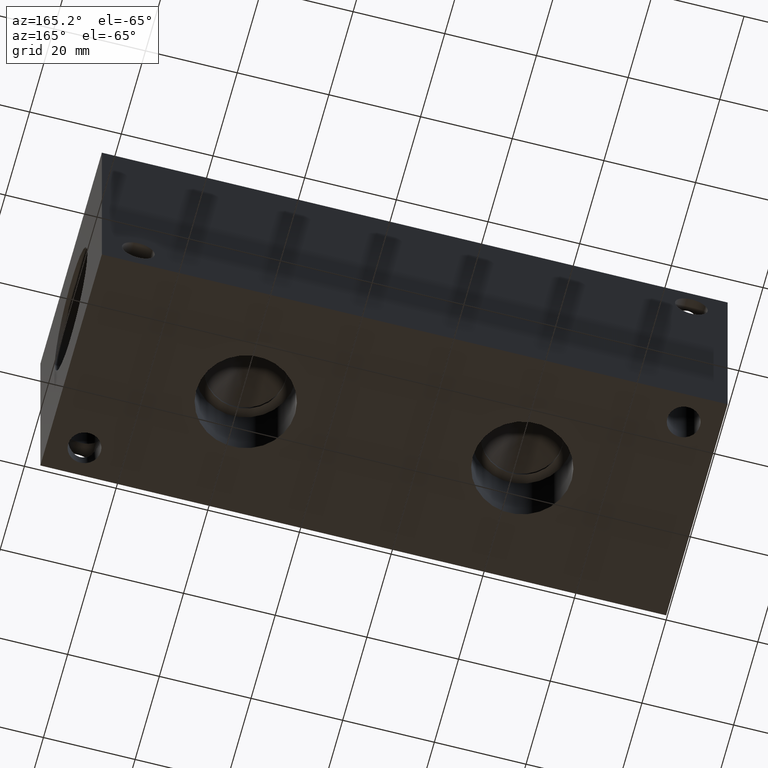
[diagram: clean part render]
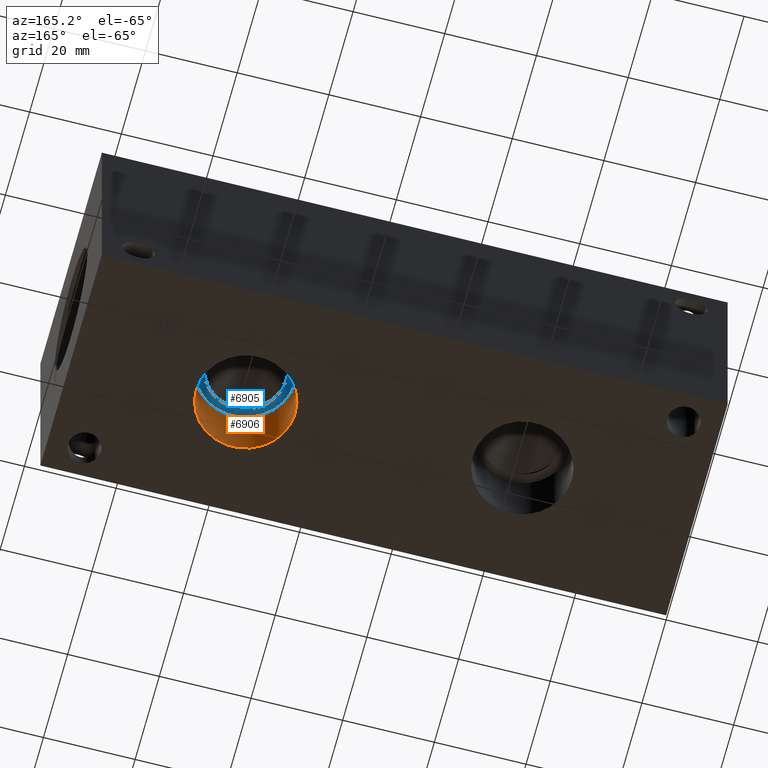
[diagram: same view with the hole feature highlighted: cylindrical wall and planar end face, labeled with their STEP entity ids]
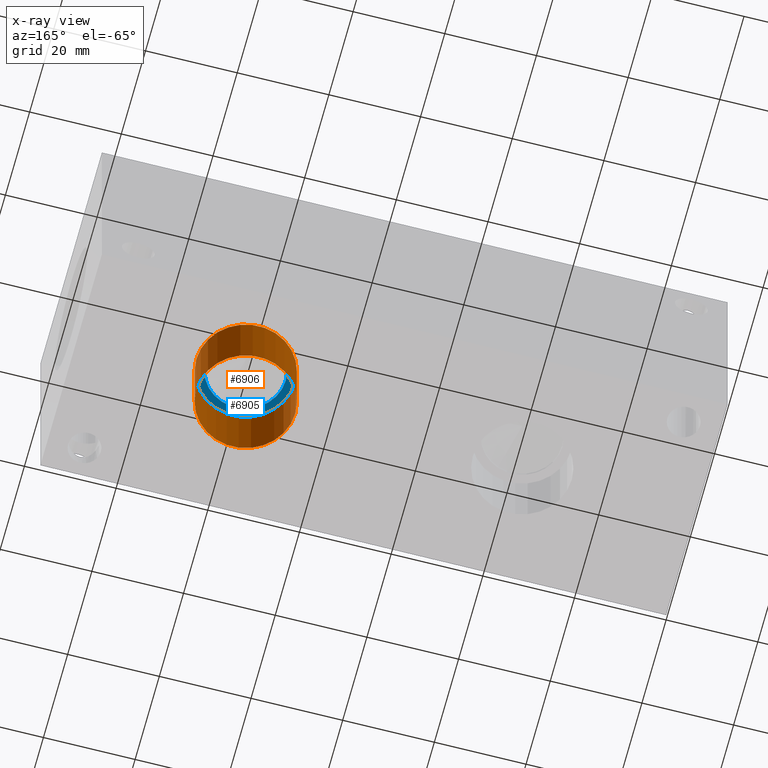
[diagram: x-ray of the same camera — body ghosted, the hole faces saturated]
A machine part, auxiliary view. The highlighted faces form one hole feature of diameter 21.59 mm: the cylindrical wall (entity #6906, orange) and its adjacent planar end face (entity #6905, blue) — they share a circular edge in the B-rep.
The next image is the same camera in x-ray (body ghosted, the hole faces saturated) — the bore reads through the body.
Wall:
#24=CYLINDRICAL_SURFACE('',#7189,10.795);
#65=CIRCLE('',#7186,10.795);
#66=CIRCLE('',#7187,10.795);
#68=CIRCLE('',#7190,10.795);
#69=CIRCLE('',#7191,10.795);
#694=FACE_OUTER_BOUND('',#1081,.T.);
#1081=EDGE_LOOP('',(#6016,#6017,#6018,#6019,#6020,#6021));
#1780=LINE('',#11690,#2463);
#2463=VECTOR('',#8398,10.795);
#3286=VERTEX_POINT('',#11679);
#3287=VERTEX_POINT('',#11680);
#3289=VERTEX_POINT('',#11686);
#3290=VERTEX_POINT('',#11687);
#4209=EDGE_CURVE('',#3286,#3287,#65,.T.);
#4210=EDGE_CURVE('',#3287,#3286,#66,.T.);
#4212=EDGE_CURVE('',#3289,#3290,#68,.T.);
#4213=EDGE_CURVE('',#3290,#3289,#69,.T.);
#4214=EDGE_CURVE('',#3290,#3287,#1780,.T.);
#6016=ORIENTED_EDGE('',*,*,#4212,.F.);
#6017=ORIENTED_EDGE('',*,*,#4213,.F.);
#6018=ORIENTED_EDGE('',*,*,#4214,.T.);
#6019=ORIENTED_EDGE('',*,*,#4209,.F.);
#6020=ORIENTED_EDGE('',*,*,#4210,.F.);
#6021=ORIENTED_EDGE('',*,*,#4214,.F.);
#6906=ADVANCED_FACE('',(#694),#24,.F.);
#7186=AXIS2_PLACEMENT_3D('',#11681,#8386,#8387);
#7187=AXIS2_PLACEMENT_3D('',#11682,#8388,#8389);
#7189=AXIS2_PLACEMENT_3D('',#11685,#8392,#8393);
#7190=AXIS2_PLACEMENT_3D('',#11688,#8394,#8395);
#7191=AXIS2_PLACEMENT_3D('',#11689,#8396,#8397);
#8386=DIRECTION('center_axis',(0.,0.,-1.));
#8387=DIRECTION('ref_axis',(1.,0.,0.));
#8388=DIRECTION('center_axis',(0.,0.,-1.));
#8389=DIRECTION('ref_axis',(1.,0.,0.));
#8392=DIRECTION('center_axis',(0.,0.,-1.));
#8393=DIRECTION('ref_axis',(1.,0.,0.));
#8394=DIRECTION('center_axis',(0.,0.,1.));
#8395=DIRECTION('ref_axis',(1.,0.,0.));
#8396=DIRECTION('center_axis',(0.,0.,1.));
#8397=DIRECTION('ref_axis',(1.,0.,0.));
#8398=DIRECTION('',(0.,0.,1.));
#11679=CARTESIAN_POINT('',(109.22,25.4,15.367));
#11680=CARTESIAN_POINT('',(87.63,25.4,15.367));
#11681=CARTESIAN_POINT('Origin',(98.425,25.4,15.367));
#11682=CARTESIAN_POINT('Origin',(98.425,25.4,15.367));
#11685=CARTESIAN_POINT('Origin',(98.425,25.4,7.6835));
#11686=CARTESIAN_POINT('',(109.22,25.4,0.));
#11687=CARTESIAN_POINT('',(87.63,25.4,0.));
#11688=CARTESIAN_POINT('Origin',(98.425,25.4,0.));
#11689=CARTESIAN_POINT('Origin',(98.425,25.4,0.));
#11690=CARTESIAN_POINT('',(87.63,25.4,7.6835));
End face:
#65=CIRCLE('',#7186,10.795);
#66=CIRCLE('',#7187,10.795);
#67=CIRCLE('',#7188,8.7376);
#137=FACE_BOUND('',#1080,.T.);
#364=PLANE('',#7185);
#693=FACE_OUTER_BOUND('',#1079,.T.);
#1079=EDGE_LOOP('',(#6013,#6014));
#1080=EDGE_LOOP('',(#6015));
#3286=VERTEX_POINT('',#11679);
#3287=VERTEX_POINT('',#11680);
#3288=VERTEX_POINT('',#11683);
#4209=EDGE_CURVE('',#3286,#3287,#65,.T.);
#4210=EDGE_CURVE('',#3287,#3286,#66,.T.);
#4211=EDGE_CURVE('',#3288,#3288,#67,.T.);
#6013=ORIENTED_EDGE('',*,*,#4209,.T.);
#6014=ORIENTED_EDGE('',*,*,#4210,.T.);
#6015=ORIENTED_EDGE('',*,*,#4211,.F.);
#6905=ADVANCED_FACE('',(#693,#137),#364,.T.);
#7185=AXIS2_PLACEMENT_3D('',#11678,#8384,#8385);
#7186=AXIS2_PLACEMENT_3D('',#11681,#8386,#8387);
#7187=AXIS2_PLACEMENT_3D('',#11682,#8388,#8389);
#7188=AXIS2_PLACEMENT_3D('',#11684,#8390,#8391);
#8384=DIRECTION('center_axis',(0.,0.,-1.));
#8385=DIRECTION('ref_axis',(1.,0.,0.));
#8386=DIRECTION('center_axis',(0.,0.,-1.));
#8387=DIRECTION('ref_axis',(1.,0.,0.));
#8388=DIRECTION('center_axis',(0.,0.,-1.));
#8389=DIRECTION('ref_axis',(1.,0.,0.));
#8390=DIRECTION('center_axis',(0.,0.,-1.));
#8391=DIRECTION('ref_axis',(1.,0.,0.));
#11678=CARTESIAN_POINT('Origin',(98.425,25.4,15.367));
#11679=CARTESIAN_POINT('',(109.22,25.4,15.367));
#11680=CARTESIAN_POINT('',(87.63,25.4,15.367));
#11681=CARTESIAN_POINT('Origin',(98.425,25.4,15.367));
#11682=CARTESIAN_POINT('Origin',(98.425,25.4,15.367));
#11683=CARTESIAN_POINT('',(89.6874,25.4,15.367));
#11684=CARTESIAN_POINT('Origin',(98.425,25.4,15.367));